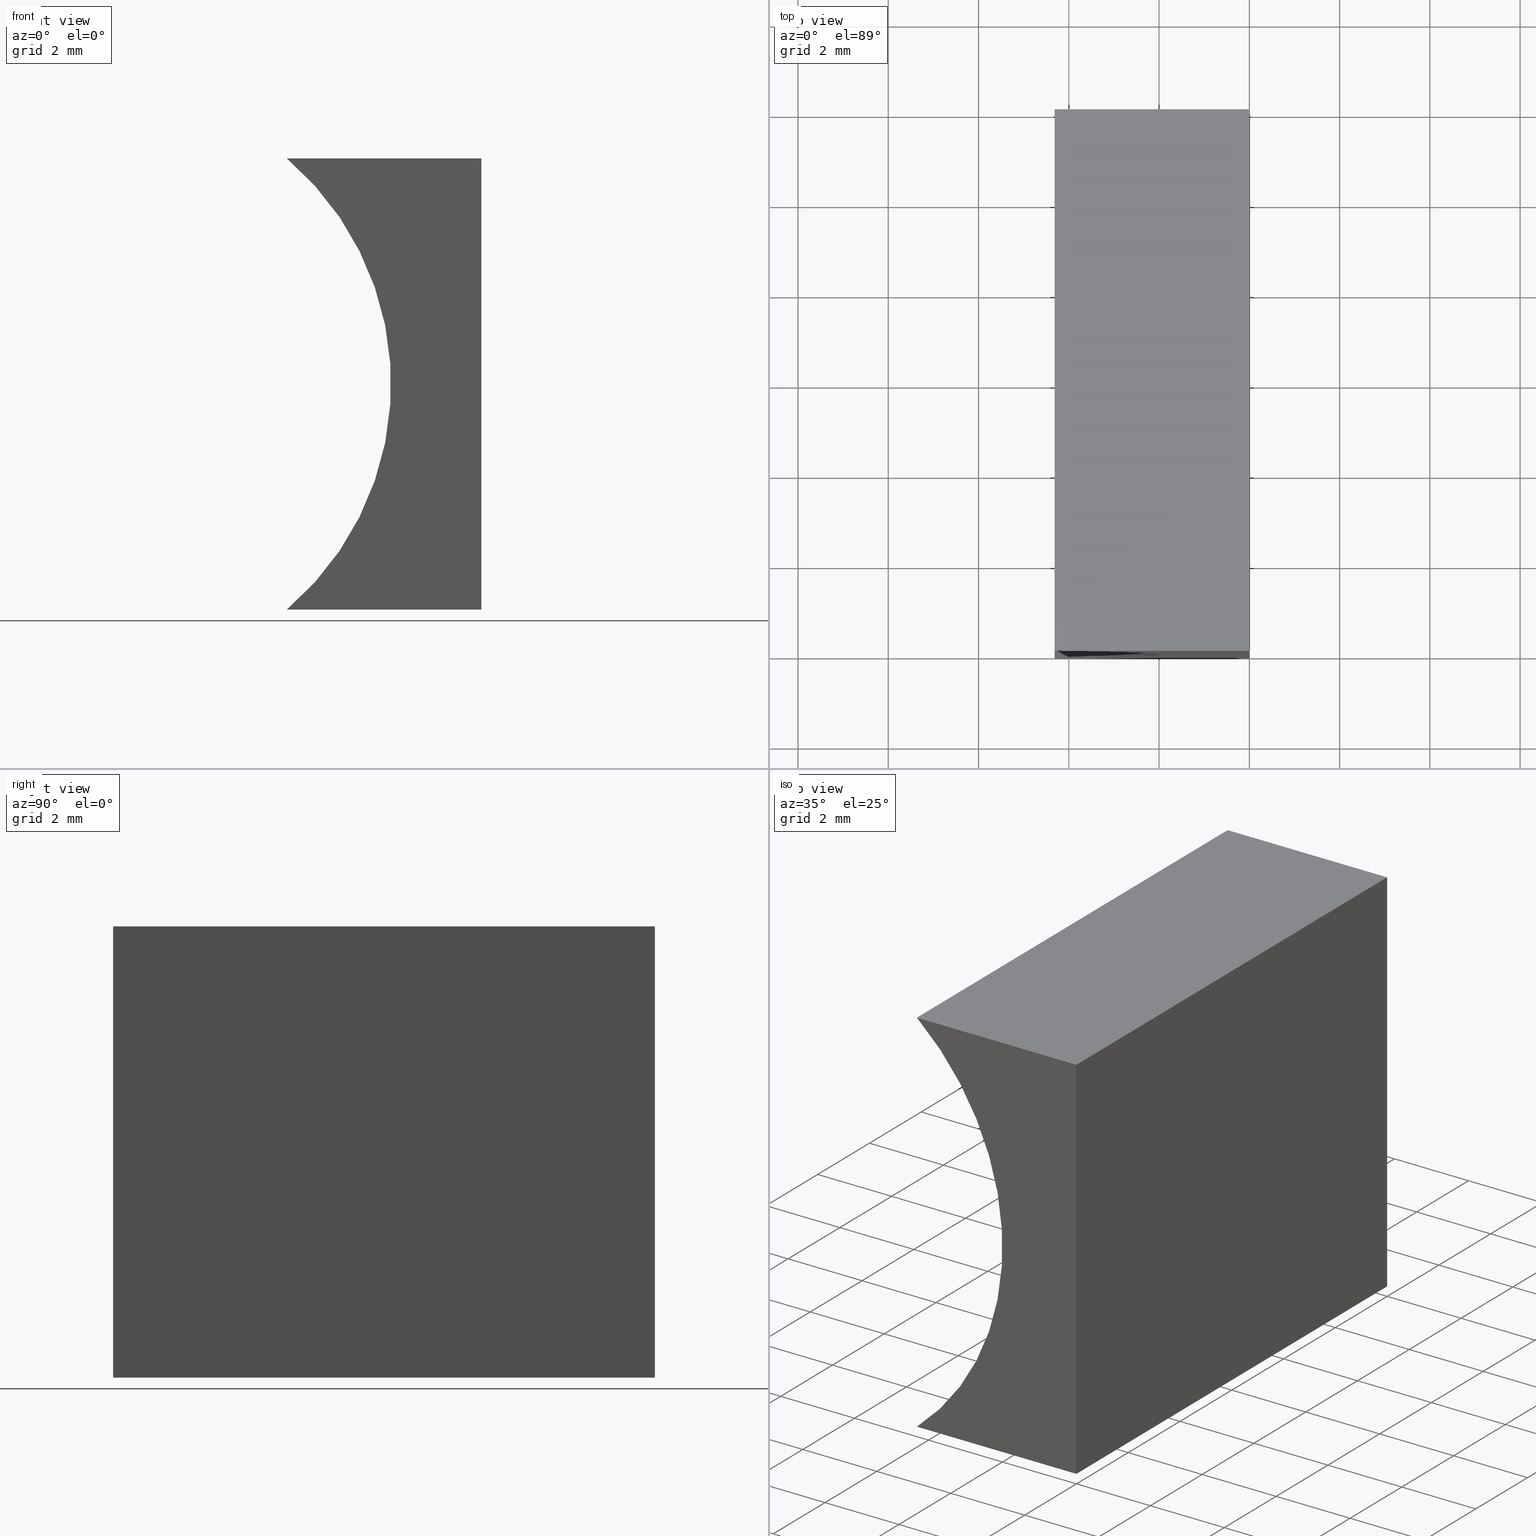
[diagram: canonical four-view strip — front | top / right | iso, engineering-drawing reading convention]
A machine part, canonical four-view strip (front | top / right | iso — engineering-drawing reading convention). The complete STEP part file that produces these views, byte-faithful:
ISO-10303-21;
HEADER;
FILE_DESCRIPTION (( 'STEP AP214' ),
    '1' );
FILE_NAME ('155338.STEP',
    '2019-06-27T07:44:09',
    ( 'user' ),
    ( '΢���й�' ),
    'SwSTEP 2.0',
    'SolidWorks 2016',
    '' );
FILE_SCHEMA (( 'AUTOMOTIVE_DESIGN' ));
ENDSEC;

DATA;
#1 = VECTOR ( 'NONE', #193, 1000.000000000000000 ) ;
#2 = VERTEX_POINT ( 'NONE', #173 ) ;
#3 = VECTOR ( 'NONE', #93, 1000.000000000000000 ) ;
#4 = DIRECTION ( 'NONE',  ( 1.000000000000000000, 0.0000000000000000000, 0.0000000000000000000 ) ) ;
#5 = DIRECTION ( 'NONE',  ( -1.000000000000000000, 0.0000000000000000000, 6.123233995736766000E-017 ) ) ;
#6 =( LENGTH_UNIT ( ) NAMED_UNIT ( * ) SI_UNIT ( .MILLI., .METRE. ) );
#7 = FACE_OUTER_BOUND ( 'NONE', #54, .T. ) ;
#8 =( GEOMETRIC_REPRESENTATION_CONTEXT ( 3 ) GLOBAL_UNCERTAINTY_ASSIGNED_CONTEXT ( ( #165 ) ) GLOBAL_UNIT_ASSIGNED_CONTEXT ( ( #114, #39, #85 ) ) REPRESENTATION_CONTEXT ( 'NONE', 'WORKASPACE' ) );
#9 = CARTESIAN_POINT ( 'NONE',  ( 0.0000000000000000000, 0.0000000000000000000, 0.0000000000000000000 ) ) ;
#10 = DIRECTION ( 'NONE',  ( 0.0000000000000000000, 0.0000000000000000000, -1.000000000000000000 ) ) ;
#11 = VERTEX_POINT ( 'NONE', #53 ) ;
#12 = STYLED_ITEM ( 'NONE', ( #189 ), #197 ) ;
#13 = ORIENTED_EDGE ( 'NONE', *, *, #22, .F. ) ;
#14 = CLOSED_SHELL ( 'NONE', ( #58, #170, #199, #147, #160, #103 ) ) ;
#15 = VECTOR ( 'NONE', #82, 1000.000000000000000 ) ;
#16 = VERTEX_POINT ( 'NONE', #95 ) ;
#17 = SURFACE_SIDE_STYLE ('',( #198 ) ) ;
#18 = EDGE_LOOP ( 'NONE', ( #149, #203, #104, #196 ) ) ;
#19 = VECTOR ( 'NONE', #83, 1000.000000000000000 ) ;
#20 = ORIENTED_EDGE ( 'NONE', *, *, #49, .F. ) ;
#21 = EDGE_CURVE ( 'NONE', #16, #112, #72, .T. ) ;
#22 = EDGE_CURVE ( 'NONE', #16, #89, #38, .T. ) ;
#23 = VERTEX_POINT ( 'NONE', #167 ) ;
#24 = ORIENTED_EDGE ( 'NONE', *, *, #22, .T. ) ;
#25 = DIRECTION ( 'NONE',  ( -0.0000000000000000000, -1.000000000000000000, -0.0000000000000000000 ) ) ;
#26 = FILL_AREA_STYLE ('',( #154 ) ) ;
#27 = PRODUCT_DEFINITION_FORMATION_WITH_SPECIFIED_SOURCE ( '�κ�', '', #88, .NOT_KNOWN. ) ;
#28 = MANIFOLD_SOLID_BREP ( '͹̨-����1', #14 ) ;
#29 = VECTOR ( 'NONE', #120, 1000.000000000000000 ) ;
#30 = ORIENTED_EDGE ( 'NONE', *, *, #21, .F. ) ;
#31 = FACE_OUTER_BOUND ( 'NONE', #18, .T. ) ;
#32 = EDGE_LOOP ( 'NONE', ( #24, #158, #177, #41 ) ) ;
#33 = CARTESIAN_POINT ( 'NONE',  ( 0.0000000000000000000, 12.00000000000000000, 0.0000000000000000000 ) ) ;
#34 = DIRECTION ( 'NONE',  ( -0.0000000000000000000, -1.000000000000000000, -0.0000000000000000000 ) ) ;
#35 = ORIENTED_EDGE ( 'NONE', *, *, #98, .F. ) ;
#36 = FILL_AREA_STYLE_COLOUR ( '', #182 ) ;
#37 = ORIENTED_EDGE ( 'NONE', *, *, #21, .T. ) ;
#38 = LINE ( 'NONE', #145, #19 ) ;
#39 =( NAMED_UNIT ( * ) PLANE_ANGLE_UNIT ( ) SI_UNIT ( $, .RADIAN. ) );
#40 = LINE ( 'NONE', #123, #159 ) ;
#41 = ORIENTED_EDGE ( 'NONE', *, *, #49, .T. ) ;
#42 = ORIENTED_EDGE ( 'NONE', *, *, #65, .F. ) ;
#43 = EDGE_CURVE ( 'NONE', #50, #2, #155, .T. ) ;
#44 = VECTOR ( 'NONE', #143, 1000.000000000000000 ) ;
#45 = CARTESIAN_POINT ( 'NONE',  ( 0.0000000000000000000, 12.00000000000000000, 0.0000000000000000000 ) ) ;
#46 = CARTESIAN_POINT ( 'NONE',  ( -4.313401361089087300, 0.0000000000000000000, 9.999999999999998200 ) ) ;
#47 = LINE ( 'NONE', #180, #15 ) ;
#48 = DIRECTION ( 'NONE',  ( -0.0000000000000000000, -1.000000000000000000, -0.0000000000000000000 ) ) ;
#49 = EDGE_CURVE ( 'NONE', #50, #16, #188, .T. ) ;
#50 = VERTEX_POINT ( 'NONE', #132 ) ;
#51 = SHAPE_DEFINITION_REPRESENTATION ( #71, #197 ) ;
#52 = EDGE_LOOP ( 'NONE', ( #174, #30, #20, #78 ) ) ;
#53 = CARTESIAN_POINT ( 'NONE',  ( -4.313401361089087300, 0.0000000000000000000, 2.602085213965210600E-015 ) ) ;
#54 = EDGE_LOOP ( 'NONE', ( #60, #153, #42, #140 ) ) ;
#55 = AXIS2_PLACEMENT_3D ( 'NONE', #64, #75, #150 ) ;
#56 = CARTESIAN_POINT ( 'NONE',  ( -4.313401361089087300, 12.00000000000000000, 2.602085213965210600E-015 ) ) ;
#57 = PLANE ( 'NONE',  #201 ) ;
#58 = ADVANCED_FACE ( 'NONE', ( #107 ), #67, .F. ) ;
#59 = PRODUCT_DEFINITION ( 'δ֪', '', #27, #139 ) ;
#60 = ORIENTED_EDGE ( 'NONE', *, *, #171, .T. ) ;
#61 = ORIENTED_EDGE ( 'NONE', *, *, #184, .F. ) ;
#62 = CARTESIAN_POINT ( 'NONE',  ( 0.0000000000000000000, 0.0000000000000000000, 0.0000000000000000000 ) ) ;
#63 =( GEOMETRIC_REPRESENTATION_CONTEXT ( 3 ) GLOBAL_UNCERTAINTY_ASSIGNED_CONTEXT ( ( #76 ) ) GLOBAL_UNIT_ASSIGNED_CONTEXT ( ( #124, #168, #122 ) ) REPRESENTATION_CONTEXT ( 'NONE', 'WORKASPACE' ) );
#64 = CARTESIAN_POINT ( 'NONE',  ( -8.560000000000000500, 0.0000000000000000000, 5.000000000000000000 ) ) ;
#65 = EDGE_CURVE ( 'NONE', #23, #50, #117, .T. ) ;
#66 = APPLICATION_CONTEXT ( 'automotive_design' ) ;
#67 = PLANE ( 'NONE',  #192 ) ;
#68 = EDGE_LOOP ( 'NONE', ( #35, #99, #108, #61 ) ) ;
#69 = DIRECTION ( 'NONE',  ( -0.0000000000000000000, -1.000000000000000000, -0.0000000000000000000 ) ) ;
#70 = ORIENTED_EDGE ( 'NONE', *, *, #98, .T. ) ;
#71 = PRODUCT_DEFINITION_SHAPE ( 'NONE', 'NONE',  #59 ) ;
#72 = LINE ( 'NONE', #109, #166 ) ;
#73 = AXIS2_PLACEMENT_3D ( 'NONE', #164, #69, #87 ) ;
#74 = EDGE_CURVE ( 'NONE', #23, #125, #47, .T. ) ;
#75 = DIRECTION ( 'NONE',  ( 0.0000000000000000000, 1.000000000000000000, 0.0000000000000000000 ) ) ;
#76 = UNCERTAINTY_MEASURE_WITH_UNIT (LENGTH_MEASURE( 1.000000000000000100E-005 ), #124, 'distance_accuracy_value', 'NONE');
#77 = FILL_AREA_STYLE ('',( #36 ) ) ;
#78 = ORIENTED_EDGE ( 'NONE', *, *, #43, .T. ) ;
#79 = SURFACE_STYLE_USAGE ( .BOTH. , #185 ) ;
#80 = EDGE_CURVE ( 'NONE', #2, #112, #91, .T. ) ;
#81 = CARTESIAN_POINT ( 'NONE',  ( -8.560000000000000500, 12.00000000000000000, 5.000000000000000000 ) ) ;
#82 = DIRECTION ( 'NONE',  ( -0.0000000000000000000, -1.000000000000000000, -0.0000000000000000000 ) ) ;
#83 = DIRECTION ( 'NONE',  ( -1.000000000000000000, 0.0000000000000000000, 4.021706608676934700E-016 ) ) ;
#84 = CARTESIAN_POINT ( 'NONE',  ( 6.123233995736766300E-016, 12.00000000000000000, 10.00000000000000000 ) ) ;
#85 =( NAMED_UNIT ( * ) SI_UNIT ( $, .STERADIAN. ) SOLID_ANGLE_UNIT ( ) );
#86 = PRODUCT_RELATED_PRODUCT_CATEGORY ( 'part', '', ( #88 ) ) ;
#87 = DIRECTION ( 'NONE',  ( 0.0000000000000000000, 0.0000000000000000000, 1.000000000000000000 ) ) ;
#88 = PRODUCT ( '155338', '155338', '', ( #195 ) ) ;
#89 = VERTEX_POINT ( 'NONE', #115 ) ;
#90 = EDGE_LOOP ( 'NONE', ( #70, #113, #13, #37 ) ) ;
#91 = LINE ( 'NONE', #9, #136 ) ;
#92 = DIRECTION ( 'NONE',  ( -0.0000000000000000000, -1.000000000000000000, -0.0000000000000000000 ) ) ;
#93 = DIRECTION ( 'NONE',  ( -0.0000000000000000000, -1.000000000000000000, -0.0000000000000000000 ) ) ;
#94 = LINE ( 'NONE', #176, #1 ) ;
#95 = CARTESIAN_POINT ( 'NONE',  ( 0.0000000000000000000, 12.00000000000000000, 0.0000000000000000000 ) ) ;
#96 = AXIS2_PLACEMENT_3D ( 'NONE', #81, #48, #10 ) ;
#97 = DIRECTION ( 'NONE',  ( 0.0000000000000000000, 1.000000000000000000, 0.0000000000000000000 ) ) ;
#98 = EDGE_CURVE ( 'NONE', #112, #11, #94, .T. ) ;
#99 = ORIENTED_EDGE ( 'NONE', *, *, #80, .F. ) ;
#100 = CIRCLE ( 'NONE', #138, 6.560000000000000500 ) ;
#101 = CARTESIAN_POINT ( 'NONE',  ( 6.123233995736766300E-016, 12.00000000000000000, 10.00000000000000000 ) ) ;
#102 = UNCERTAINTY_MEASURE_WITH_UNIT (LENGTH_MEASURE( 1.000000000000000100E-005 ), #6, 'distance_accuracy_value', 'NONE');
#103 = ADVANCED_FACE ( 'NONE', ( #142 ), #186, .F. ) ;
#104 = ORIENTED_EDGE ( 'NONE', *, *, #202, .F. ) ;
#105 = DIRECTION ( 'NONE',  ( 0.0000000000000000000, 0.0000000000000000000, 1.000000000000000000 ) ) ;
#106 = DIRECTION ( 'NONE',  ( 1.000000000000000000, -0.0000000000000000000, 4.021706608676934700E-016 ) ) ;
#107 = FACE_OUTER_BOUND ( 'NONE', #90, .T. ) ;
#108 = ORIENTED_EDGE ( 'NONE', *, *, #171, .F. ) ;
#109 = CARTESIAN_POINT ( 'NONE',  ( 0.0000000000000000000, 12.00000000000000000, 0.0000000000000000000 ) ) ;
#110 = DIRECTION ( 'NONE',  ( 0.0000000000000000000, 0.0000000000000000000, 1.000000000000000000 ) ) ;
#111 = SURFACE_STYLE_USAGE ( .BOTH. , #17 ) ;
#112 = VERTEX_POINT ( 'NONE', #190 ) ;
#113 = ORIENTED_EDGE ( 'NONE', *, *, #135, .F. ) ;
#114 =( LENGTH_UNIT ( ) NAMED_UNIT ( * ) SI_UNIT ( .MILLI., .METRE. ) );
#115 = CARTESIAN_POINT ( 'NONE',  ( -4.313401361089087300, 12.00000000000000000, 2.602085213965210600E-015 ) ) ;
#116 = DIRECTION ( 'NONE',  ( -1.000000000000000000, 0.0000000000000000000, -4.021706608676934700E-016 ) ) ;
#117 = LINE ( 'NONE', #151, #29 ) ;
#118 = LINE ( 'NONE', #56, #3 ) ;
#119 = APPLICATION_PROTOCOL_DEFINITION ( 'draft international standard', 'automotive_design', 1998, #134 ) ;
#120 = DIRECTION ( 'NONE',  ( 1.000000000000000000, -0.0000000000000000000, 4.021706608676934700E-016 ) ) ;
#121 = DIRECTION ( 'NONE',  ( -6.123233995736766000E-017, -0.0000000000000000000, -1.000000000000000000 ) ) ;
#122 =( NAMED_UNIT ( * ) SI_UNIT ( $, .STERADIAN. ) SOLID_ANGLE_UNIT ( ) );
#123 = CARTESIAN_POINT ( 'NONE',  ( 6.123233995736766300E-016, 0.0000000000000000000, 10.00000000000000000 ) ) ;
#124 =( LENGTH_UNIT ( ) NAMED_UNIT ( * ) SI_UNIT ( .MILLI., .METRE. ) );
#125 = VERTEX_POINT ( 'NONE', #46 ) ;
#126 = PLANE ( 'NONE',  #129 ) ;
#127 = PRESENTATION_STYLE_ASSIGNMENT (( #111 ) ) ;
#128 = PLANE ( 'NONE',  #169 ) ;
#129 = AXIS2_PLACEMENT_3D ( 'NONE', #33, #5, #130 ) ;
#130 = DIRECTION ( 'NONE',  ( 6.123233995736766000E-017, 0.0000000000000000000, 1.000000000000000000 ) ) ;
#131 =( NAMED_UNIT ( * ) PLANE_ANGLE_UNIT ( ) SI_UNIT ( $, .RADIAN. ) );
#132 = CARTESIAN_POINT ( 'NONE',  ( 6.123233995736766300E-016, 12.00000000000000000, 10.00000000000000000 ) ) ;
#133 = DIRECTION ( 'NONE',  ( 4.021706608676934700E-016, -0.0000000000000000000, 1.000000000000000000 ) ) ;
#134 = APPLICATION_CONTEXT ( 'automotive_design' ) ;
#135 = EDGE_CURVE ( 'NONE', #89, #11, #118, .T. ) ;
#136 = VECTOR ( 'NONE', #121, 1000.000000000000000 ) ;
#137 =( NAMED_UNIT ( * ) SI_UNIT ( $, .STERADIAN. ) SOLID_ANGLE_UNIT ( ) );
#138 = AXIS2_PLACEMENT_3D ( 'NONE', #179, #25, #110 ) ;
#139 = PRODUCT_DEFINITION_CONTEXT ( 'detailed design', #66, 'design' ) ;
#140 = ORIENTED_EDGE ( 'NONE', *, *, #74, .T. ) ;
#141 = STYLED_ITEM ( 'NONE', ( #127 ), #28 ) ;
#142 = FACE_OUTER_BOUND ( 'NONE', #68, .T. ) ;
#143 = DIRECTION ( 'NONE',  ( -6.123233995736766000E-017, -0.0000000000000000000, -1.000000000000000000 ) ) ;
#144 = FACE_OUTER_BOUND ( 'NONE', #32, .T. ) ;
#145 = CARTESIAN_POINT ( 'NONE',  ( 0.0000000000000000000, 12.00000000000000000, 0.0000000000000000000 ) ) ;
#146 = PRESENTATION_LAYER_ASSIGNMENT (  '', '', ( #12 ) ) ;
#147 = ADVANCED_FACE ( 'NONE', ( #194 ), #126, .F. ) ;
#148 = CARTESIAN_POINT ( 'NONE',  ( 0.0000000000000000000, 12.00000000000000000, 0.0000000000000000000 ) ) ;
#149 = ORIENTED_EDGE ( 'NONE', *, *, #184, .T. ) ;
#150 = DIRECTION ( 'NONE',  ( 0.0000000000000000000, -0.0000000000000000000, 1.000000000000000000 ) ) ;
#151 = CARTESIAN_POINT ( 'NONE',  ( 6.123233995736766300E-016, 12.00000000000000000, 10.00000000000000000 ) ) ;
#152 = DIRECTION ( 'NONE',  ( 4.021706608676934700E-016, 0.0000000000000000000, -1.000000000000000000 ) ) ;
#153 = ORIENTED_EDGE ( 'NONE', *, *, #43, .F. ) ;
#154 = FILL_AREA_STYLE_COLOUR ( '', #157 ) ;
#155 = LINE ( 'NONE', #84, #163 ) ;
#156 = DIRECTION ( 'NONE',  ( 1.000000000000000000, 0.0000000000000000000, -4.021706608676934700E-016 ) ) ;
#157 = COLOUR_RGB ( '',1.000000000000000000, 1.000000000000000000, 1.000000000000000000 ) ;
#158 = ORIENTED_EDGE ( 'NONE', *, *, #202, .T. ) ;
#159 = VECTOR ( 'NONE', #106, 1000.000000000000000 ) ;
#160 = ADVANCED_FACE ( 'NONE', ( #144 ), #128, .T. ) ;
#161 = SURFACE_STYLE_FILL_AREA ( #26 ) ;
#162 = AXIS2_PLACEMENT_3D ( 'NONE', #62, #105, #4 ) ;
#163 = VECTOR ( 'NONE', #34, 1000.000000000000000 ) ;
#164 = CARTESIAN_POINT ( 'NONE',  ( -8.560000000000000500, 0.0000000000000000000, 5.000000000000000000 ) ) ;
#165 = UNCERTAINTY_MEASURE_WITH_UNIT (LENGTH_MEASURE( 1.000000000000000100E-005 ), #114, 'distance_accuracy_value', 'NONE');
#166 = VECTOR ( 'NONE', #92, 1000.000000000000000 ) ;
#167 = CARTESIAN_POINT ( 'NONE',  ( -4.313401361089087300, 12.00000000000000000, 9.999999999999998200 ) ) ;
#168 =( NAMED_UNIT ( * ) PLANE_ANGLE_UNIT ( ) SI_UNIT ( $, .RADIAN. ) );
#169 = AXIS2_PLACEMENT_3D ( 'NONE', #187, #97, #183 ) ;
#170 = ADVANCED_FACE ( 'NONE', ( #31 ), #204, .F. ) ;
#171 = EDGE_CURVE ( 'NONE', #125, #2, #40, .T. ) ;
#172 = APPLICATION_PROTOCOL_DEFINITION ( 'draft international standard', 'automotive_design', 1998, #66 ) ;
#173 = CARTESIAN_POINT ( 'NONE',  ( 6.123233995736766300E-016, 0.0000000000000000000, 10.00000000000000000 ) ) ;
#174 = ORIENTED_EDGE ( 'NONE', *, *, #80, .T. ) ;
#175 = CIRCLE ( 'NONE', #73, 6.560000000000000500 ) ;
#176 = CARTESIAN_POINT ( 'NONE',  ( 0.0000000000000000000, 0.0000000000000000000, 0.0000000000000000000 ) ) ;
#177 = ORIENTED_EDGE ( 'NONE', *, *, #65, .T. ) ;
#178 = MECHANICAL_DESIGN_GEOMETRIC_PRESENTATION_REPRESENTATION (  '', ( #141 ), #8 ) ;
#179 = CARTESIAN_POINT ( 'NONE',  ( -8.560000000000000500, 12.00000000000000000, 5.000000000000000000 ) ) ;
#180 = CARTESIAN_POINT ( 'NONE',  ( -4.313401361089087300, 12.00000000000000000, 9.999999999999998200 ) ) ;
#181 = MECHANICAL_DESIGN_GEOMETRIC_PRESENTATION_REPRESENTATION (  '', ( #12 ), #191 ) ;
#182 = COLOUR_RGB ( '',1.000000000000000000, 1.000000000000000000, 1.000000000000000000 ) ;
#183 = DIRECTION ( 'NONE',  ( 0.0000000000000000000, -0.0000000000000000000, 1.000000000000000000 ) ) ;
#184 = EDGE_CURVE ( 'NONE', #11, #125, #175, .T. ) ;
#185 = SURFACE_SIDE_STYLE ('',( #161 ) ) ;
#186 = PLANE ( 'NONE',  #55 ) ;
#187 = CARTESIAN_POINT ( 'NONE',  ( -8.560000000000000500, 12.00000000000000000, 5.000000000000000000 ) ) ;
#188 = LINE ( 'NONE', #148, #44 ) ;
#189 = PRESENTATION_STYLE_ASSIGNMENT (( #79 ) ) ;
#190 = CARTESIAN_POINT ( 'NONE',  ( 0.0000000000000000000, 0.0000000000000000000, 0.0000000000000000000 ) ) ;
#191 =( GEOMETRIC_REPRESENTATION_CONTEXT ( 3 ) GLOBAL_UNCERTAINTY_ASSIGNED_CONTEXT ( ( #102 ) ) GLOBAL_UNIT_ASSIGNED_CONTEXT ( ( #6, #131, #137 ) ) REPRESENTATION_CONTEXT ( 'NONE', 'WORKASPACE' ) );
#192 = AXIS2_PLACEMENT_3D ( 'NONE', #45, #133, #156 ) ;
#193 = DIRECTION ( 'NONE',  ( -1.000000000000000000, 0.0000000000000000000, 4.021706608676934700E-016 ) ) ;
#194 = FACE_OUTER_BOUND ( 'NONE', #52, .T. ) ;
#195 = PRODUCT_CONTEXT ( 'NONE', #134, 'mechanical' ) ;
#196 = ORIENTED_EDGE ( 'NONE', *, *, #135, .T. ) ;
#197 = ADVANCED_BREP_SHAPE_REPRESENTATION ( '155338', ( #28, #162 ), #63 ) ;
#198 = SURFACE_STYLE_FILL_AREA ( #77 ) ;
#199 = ADVANCED_FACE ( 'NONE', ( #7 ), #57, .F. ) ;
#200 = PRESENTATION_LAYER_ASSIGNMENT (  '', '', ( #141 ) ) ;
#201 = AXIS2_PLACEMENT_3D ( 'NONE', #101, #152, #116 ) ;
#202 = EDGE_CURVE ( 'NONE', #89, #23, #100, .T. ) ;
#203 = ORIENTED_EDGE ( 'NONE', *, *, #74, .F. ) ;
#204 = CYLINDRICAL_SURFACE ( 'NONE', #96, 6.559999999999999600 ) ;
ENDSEC;
END-ISO-10303-21;
